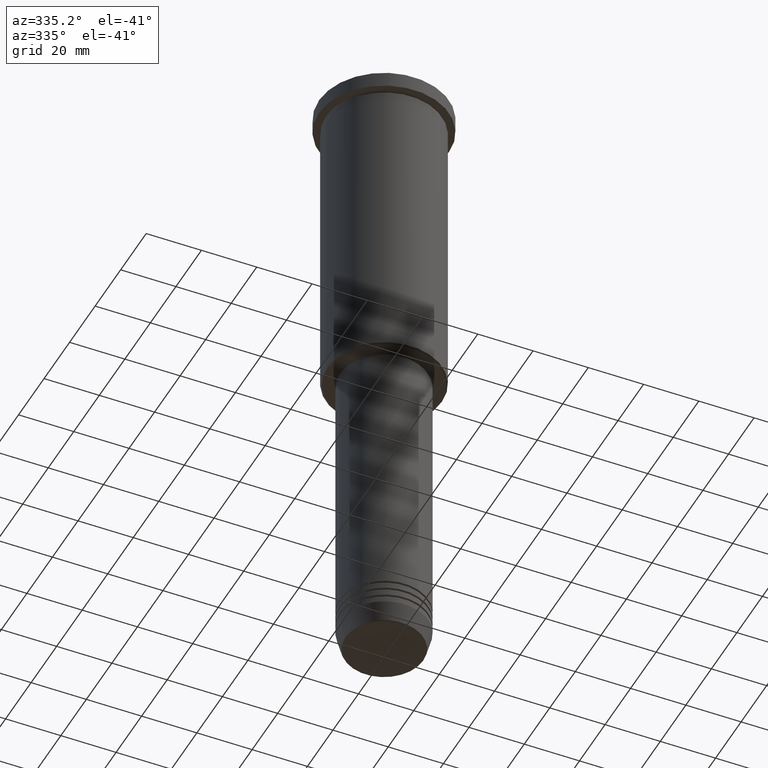
[diagram: clean part render]
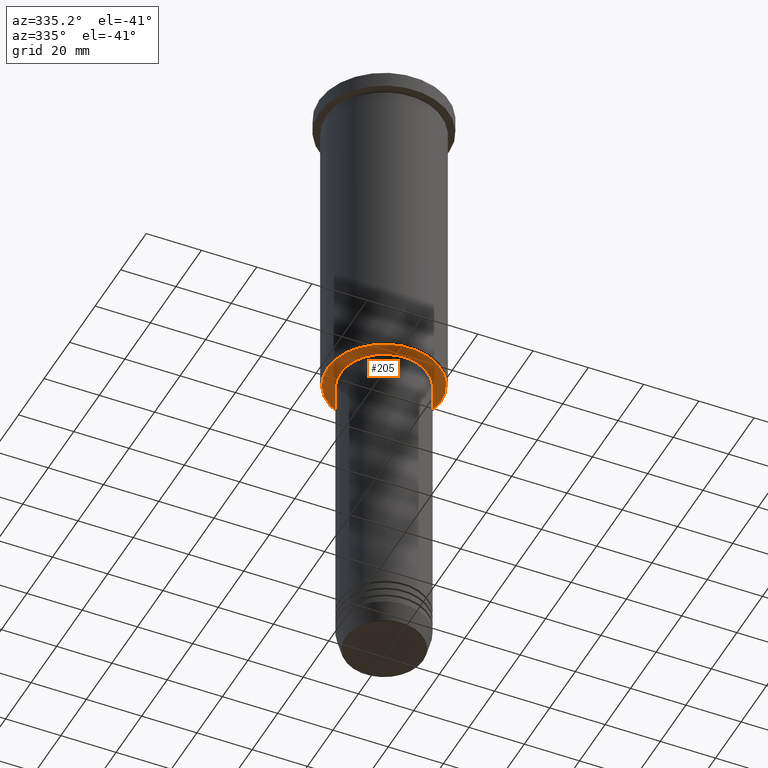
[diagram: same view with one face highlighted and labeled with its STEP entity id]
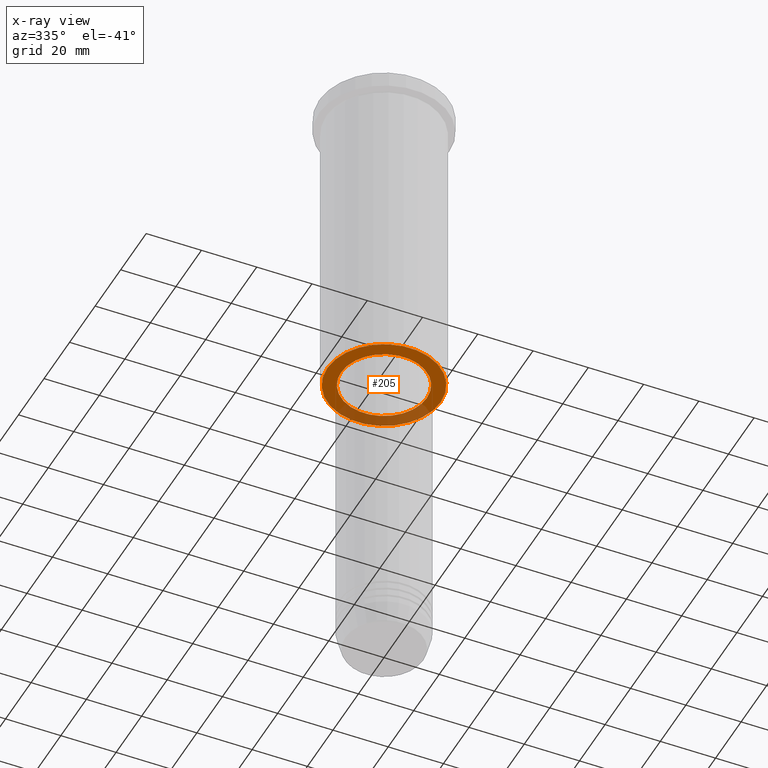
[diagram: x-ray of the same camera — body ghosted, the highlighted face saturated]
A machine part, auxiliary view. The second image highlights one B-rep face of the part: STEP entity #205.
The next image is the same camera in x-ray: the body ghosted, the highlighted face saturated — about 28% of this face is hidden behind the body in this view.
In plain terms, the highlighted planar face has unit normal (0, 0, -1).
Its self-contained STEP definition (entity closure, byte-faithful):
#1 = CARTESIAN_POINT ( 'NONE',  ( 0.000000000000000000, 0.000000000000000000, -115.9999999999999858 ) ) ;
#77 = CIRCLE ( 'NONE', #817, 15.50000000000000000 ) ;
#95 = AXIS2_PLACEMENT_3D ( 'NONE', #1, #739, #175 ) ;
#124 = CARTESIAN_POINT ( 'NONE',  ( -20.50000000000001776, 2.541142108230759057E-15, -115.9999999999999858 ) ) ;
#125 = DIRECTION ( 'NONE',  ( 0.000000000000000000, 0.000000000000000000, -1.000000000000000000 ) ) ;
#131 = DIRECTION ( 'NONE',  ( -0.000000000000000000, -0.000000000000000000, 1.000000000000000000 ) ) ;
#139 = CARTESIAN_POINT ( 'NONE',  ( 0.000000000000000000, 21.00000000000000000, -115.9999999999999858 ) ) ;
#164 = DIRECTION ( 'NONE',  ( 0.000000000000000000, 0.000000000000000000, -1.000000000000000000 ) ) ;
#175 = DIRECTION ( 'NONE',  ( 1.000000000000000000, 0.000000000000000000, 0.000000000000000000 ) ) ;
#205 = ADVANCED_FACE ( 'NONE', ( #527, #702 ), #967, .T. ) ;
#227 = CARTESIAN_POINT ( 'NONE',  ( 0.000000000000000000, 0.000000000000000000, -115.9999999999999858 ) ) ;
#246 = DIRECTION ( 'NONE',  ( -1.000000000000000000, 0.000000000000000000, 0.000000000000000000 ) ) ;
#267 = VERTEX_POINT ( 'NONE', #857 ) ;
#296 = CARTESIAN_POINT ( 'NONE',  ( 0.000000000000000000, 0.000000000000000000, -115.9999999999999858 ) ) ;
#359 = EDGE_CURVE ( 'NONE', #634, #915, #483, .T. ) ;
#413 = DIRECTION ( 'NONE',  ( 1.000000000000000000, 0.000000000000000000, 0.000000000000000000 ) ) ;
#417 = DIRECTION ( 'NONE',  ( -1.000000000000000000, 0.000000000000000000, -0.000000000000000000 ) ) ;
#429 = AXIS2_PLACEMENT_3D ( 'NONE', #628, #164, #246 ) ;
#483 = CIRCLE ( 'NONE', #789, 20.50000000000001776 ) ;
#498 = EDGE_CURVE ( 'NONE', #915, #634, #1089, .T. ) ;
#527 = FACE_OUTER_BOUND ( 'NONE', #802, .T. ) ;
#611 = VERTEX_POINT ( 'NONE', #883 ) ;
#628 = CARTESIAN_POINT ( 'NONE',  ( 0.000000000000000000, 0.000000000000000000, -115.9999999999999858 ) ) ;
#634 = VERTEX_POINT ( 'NONE', #822 ) ;
#653 = EDGE_LOOP ( 'NONE', ( #991, #1079 ) ) ;
#673 = CIRCLE ( 'NONE', #95, 15.50000000000000000 ) ;
#698 = EDGE_CURVE ( 'NONE', #267, #611, #673, .T. ) ;
#702 = FACE_BOUND ( 'NONE', #653, .T. ) ;
#708 = DIRECTION ( 'NONE',  ( 0.000000000000000000, 0.000000000000000000, -1.000000000000000000 ) ) ;
#711 = AXIS2_PLACEMENT_3D ( 'NONE', #139, #708, #417 ) ;
#739 = DIRECTION ( 'NONE',  ( -0.000000000000000000, -0.000000000000000000, 1.000000000000000000 ) ) ;
#776 = DIRECTION ( 'NONE',  ( -1.000000000000000000, 0.000000000000000000, 0.000000000000000000 ) ) ;
#789 = AXIS2_PLACEMENT_3D ( 'NONE', #227, #125, #776 ) ;
#802 = EDGE_LOOP ( 'NONE', ( #819, #1143 ) ) ;
#817 = AXIS2_PLACEMENT_3D ( 'NONE', #296, #131, #413 ) ;
#819 = ORIENTED_EDGE ( 'NONE', *, *, #359, .T. ) ;
#822 = CARTESIAN_POINT ( 'NONE',  ( 20.50000000000001776, 0.000000000000000000, -115.9999999999999858 ) ) ;
#857 = CARTESIAN_POINT ( 'NONE',  ( 15.50000000000000000, 0.000000000000000000, -115.9999999999999858 ) ) ;
#883 = CARTESIAN_POINT ( 'NONE',  ( -15.50000000000000000, 1.898202538678397557E-15, -115.9999999999999858 ) ) ;
#896 = EDGE_CURVE ( 'NONE', #611, #267, #77, .T. ) ;
#915 = VERTEX_POINT ( 'NONE', #124 ) ;
#967 = PLANE ( 'NONE',  #711 ) ;
#991 = ORIENTED_EDGE ( 'NONE', *, *, #698, .T. ) ;
#1079 = ORIENTED_EDGE ( 'NONE', *, *, #896, .T. ) ;
#1089 = CIRCLE ( 'NONE', #429, 20.50000000000001776 ) ;
#1143 = ORIENTED_EDGE ( 'NONE', *, *, #498, .T. ) ;